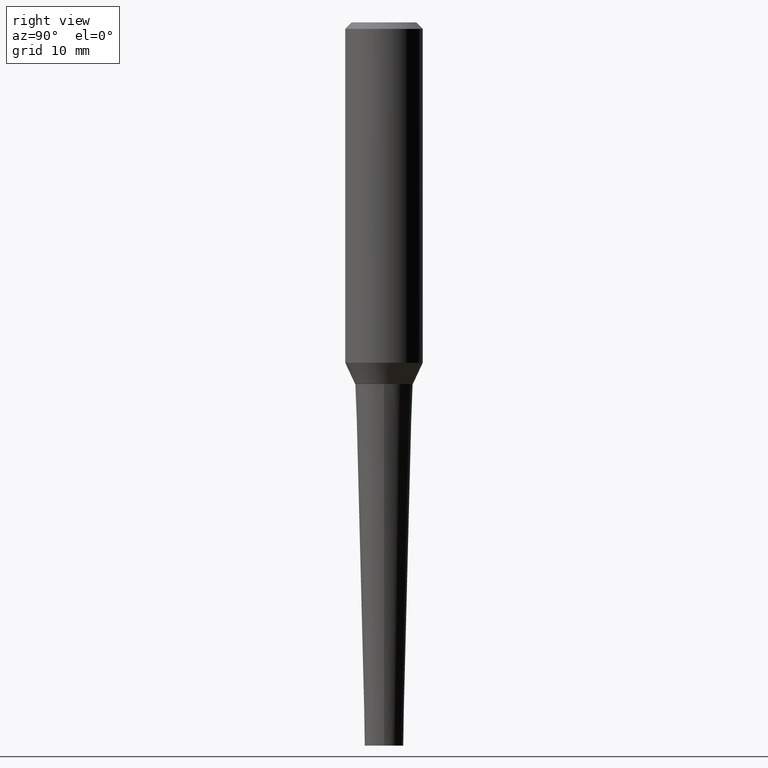
[diagram: clean part render]
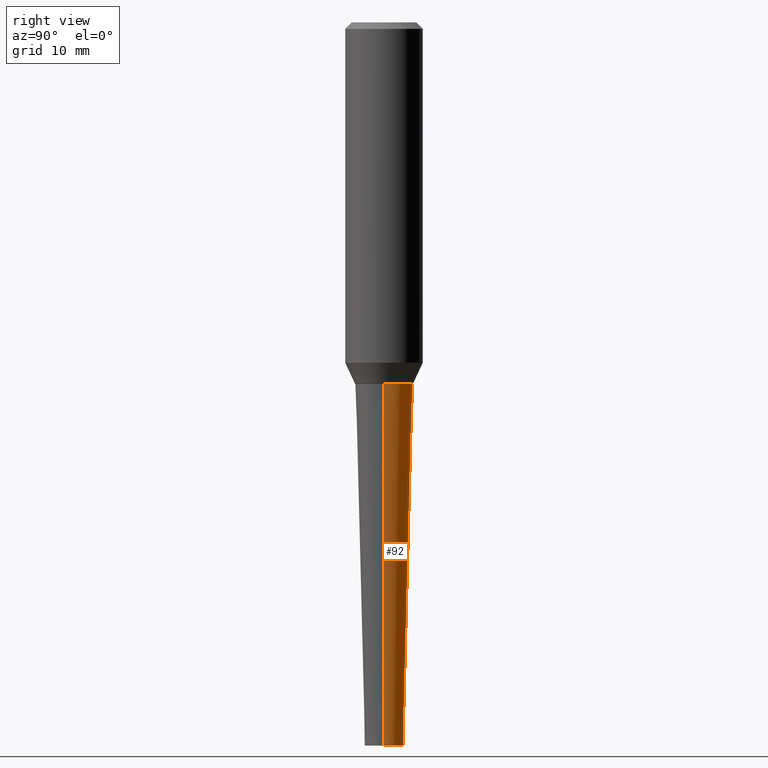
[diagram: same view with one face highlighted and labeled with its STEP entity id]
A machine part, right view. The second image highlights one B-rep face of the part: STEP entity #92.
In plain terms, the highlighted conical surface has half-angle 1.5 deg.
Its self-contained STEP definition (entity closure, byte-faithful):
#3 = DIRECTION ( 'NONE',  ( 1.000000000000000000, -6.982962677686264344E-15, 0.000000000000000000 ) ) ;
#12 = ORIENTED_EDGE ( 'NONE', *, *, #188, .F. ) ;
#19 = CARTESIAN_POINT ( 'NONE',  ( -0.1395753627460647461, -5.118349742072530161E-15, -1.750000000000000000 ) ) ;
#27 = ORIENTED_EDGE ( 'NONE', *, *, #72, .F. ) ;
#34 = VERTEX_POINT ( 'NONE', #19 ) ;
#58 = DIRECTION ( 'NONE',  ( -2.445468806185136597E-29, 3.491481338843145583E-15, 1.000000000000000000 ) ) ;
#67 = DIRECTION ( 'NONE',  ( -2.445468806185136597E-29, 3.491481338843145583E-15, 1.000000000000000000 ) ) ;
#72 = EDGE_CURVE ( 'NONE', #265, #108, #157, .T. ) ;
#76 = DIRECTION ( 'NONE',  ( -2.445468806185136597E-29, 3.491481338843145583E-15, 1.000000000000000000 ) ) ;
#84 = CARTESIAN_POINT ( 'NONE',  ( 8.559140821647976968E-29, -1.222018468595100934E-14, -3.500000000000000000 ) ) ;
#88 = AXIS2_PLACEMENT_3D ( 'NONE', #183, #58, #279 ) ;
#92 = ADVANCED_FACE ( 'NONE', ( #375 ), #266, .T. ) ;
#108 = VERTEX_POINT ( 'NONE', #312 ) ;
#146 = ORIENTED_EDGE ( 'NONE', *, *, #193, .T. ) ;
#150 = DIRECTION ( 'NONE',  ( 1.000000000000000000, -6.982962677686257244E-15, 0.000000000000000000 ) ) ;
#157 = LINE ( 'NONE', #310, #203 ) ;
#183 = CARTESIAN_POINT ( 'NONE',  ( 8.559140821647976968E-29, -1.222018468595100934E-14, -3.500000000000000000 ) ) ;
#185 = AXIS2_PLACEMENT_3D ( 'NONE', #416, #67, #3 ) ;
#188 = EDGE_CURVE ( 'NONE', #108, #34, #355, .T. ) ;
#193 = EDGE_CURVE ( 'NONE', #301, #34, #319, .T. ) ;
#195 = DIRECTION ( 'NONE',  ( -0.02617694830786604712, 3.676283300035236100E-15, 0.9996573249755573709 ) ) ;
#198 = EDGE_LOOP ( 'NONE', ( #200, #146, #12, #27 ) ) ;
#200 = ORIENTED_EDGE ( 'NONE', *, *, #304, .T. ) ;
#203 = VECTOR ( 'NONE', #317, 39.37007874015748143 ) ;
#204 = CIRCLE ( 'NONE', #257, 0.09375000000000006939 ) ;
#237 = VECTOR ( 'NONE', #195, 39.37007874015748143 ) ;
#257 = AXIS2_PLACEMENT_3D ( 'NONE', #84, #76, #150 ) ;
#265 = VERTEX_POINT ( 'NONE', #296 ) ;
#266 = CONICAL_SURFACE ( 'NONE', #88, 0.09375000000000006939, 0.02617993877990783605 ) ;
#279 = DIRECTION ( 'NONE',  ( 1.000000000000000000, -6.982962677686257244E-15, 0.000000000000000000 ) ) ;
#296 = CARTESIAN_POINT ( 'NONE',  ( 0.09375000000000006939, -1.287483743698409606E-14, -3.500000000000000000 ) ) ;
#301 = VERTEX_POINT ( 'NONE', #326 ) ;
#304 = EDGE_CURVE ( 'NONE', #265, #301, #204, .T. ) ;
#310 = CARTESIAN_POINT ( 'NONE',  ( 0.09375000000000006939, -1.287483743698409606E-14, -3.500000000000000000 ) ) ;
#312 = CARTESIAN_POINT ( 'NONE',  ( 0.1395753627460647461, -7.084741891755795010E-15, -1.750000000000000000 ) ) ;
#317 = DIRECTION ( 'NONE',  ( 0.02617694830786604712, 3.307492242340466312E-15, 0.9996573249755573709 ) ) ;
#319 = LINE ( 'NONE', #354, #237 ) ;
#326 = CARTESIAN_POINT ( 'NONE',  ( -0.09375000000000006939, -8.336200306624222789E-15, -3.500000000000000000 ) ) ;
#354 = CARTESIAN_POINT ( 'NONE',  ( -0.09375000000000006939, -1.155405087117591384E-14, -3.500000000000000000 ) ) ;
#355 = CIRCLE ( 'NONE', #185, 0.1395753627460647461 ) ;
#375 = FACE_OUTER_BOUND ( 'NONE', #198, .T. ) ;
#416 = CARTESIAN_POINT ( 'NONE',  ( 4.279570410823988484E-29, -6.110092342975504671E-15, -1.750000000000000000 ) ) ;